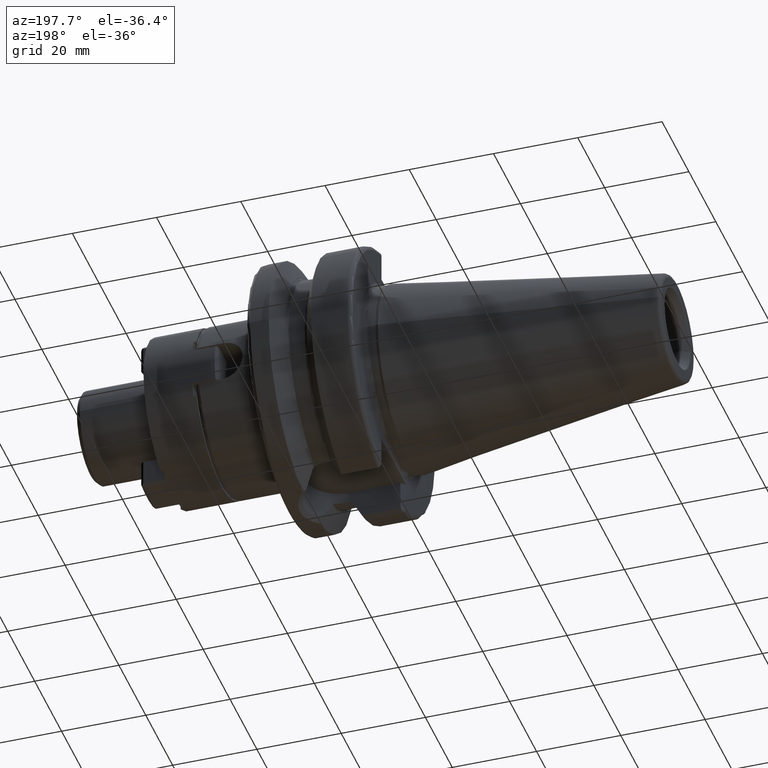
[diagram: clean part render]
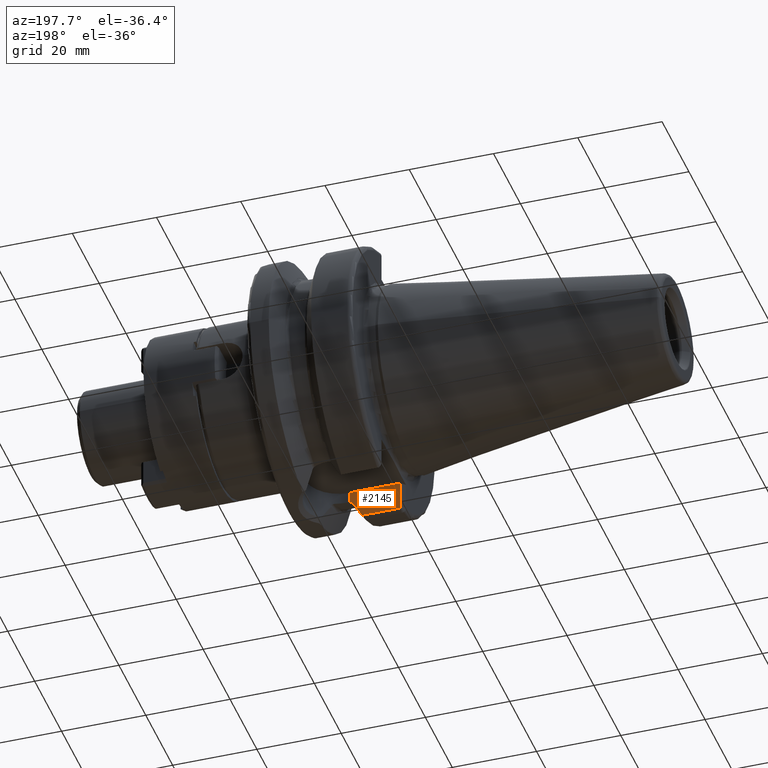
[diagram: same view with one face highlighted and labeled with its STEP entity id]
A machine part, auxiliary view. The second image highlights one B-rep face of the part: STEP entity #2145.
In plain terms, the highlighted planar face has unit normal (0, -1, 0).
Its self-contained STEP definition (entity closure, byte-faithful):
#293=DIRECTION('',(6.771558882017E-14,-6.771558882017E-14,-1.E0));
#294=VECTOR('',#293,5.246522611263E-2);
#295=CARTESIAN_POINT('',(1.40625E1,-8.095E0,-2.588892813540E1));
#296=LINE('',#295,#294);
#297=CARTESIAN_POINT('',(1.48125E1,-8.095E0,-2.510202382279E1));
#298=CARTESIAN_POINT('',(1.474626583175E1,-8.095E0,-2.510202382279E1));
#299=CARTESIAN_POINT('',(1.462196122728E1,-8.095E0,-2.512019824361E1));
#300=CARTESIAN_POINT('',(1.446015344720E1,-8.095E0,-2.518681119149E1));
#301=CARTESIAN_POINT('',(1.432194250541E1,-8.095E0,-2.528577048685E1));
#302=CARTESIAN_POINT('',(1.421112933741E1,-8.095E0,-2.540882158997E1));
#303=CARTESIAN_POINT('',(1.412599264270E1,-8.095E0,-2.555700431287E1));
#304=CARTESIAN_POINT('',(1.407429746920E1,-8.095E0,-2.571931087657E1));
#305=CARTESIAN_POINT('',(1.40625E1,-8.095E0,-2.583143069402E1));
#306=CARTESIAN_POINT('',(1.40625E1,-8.095E0,-2.588892813540E1));
#308=DIRECTION('',(1.E0,0.E0,0.E0));
#309=VECTOR('',#308,3.425E-1);
#310=CARTESIAN_POINT('',(1.48125E1,-8.095E0,-2.510202382279E1));
#311=LINE('',#310,#309);
#312=DIRECTION('',(-2.257498889307E-6,2.251545840954E-6,-9.999999999949E-1));
#313=VECTOR('',#312,6.649196006545E0);
#314=CARTESIAN_POINT('',(3.E0,-8.095E0,-2.245E1));
#315=LINE('',#314,#313);
#316=CARTESIAN_POINT('',(2.999984989447E0,-8.094985029030E0,-2.909919600651E1));
#317=CARTESIAN_POINT('',(2.978199953432E0,-8.094985029030E0,-2.910621005326E1));
#318=CARTESIAN_POINT('',(2.939061403220E0,-8.095006941660E0,-2.912732028587E1));
#319=CARTESIAN_POINT('',(2.888635871055E0,-8.094998160646E0,-2.918633978618E1));
#320=CARTESIAN_POINT('',(2.863816327920E0,-8.095000415757E0,-2.926079737323E1));
#321=CARTESIAN_POINT('',(2.867841466574E0,-8.095000176327E0,-2.933639768654E1));
#322=CARTESIAN_POINT('',(2.898195259320E0,-8.094998878937E0,-2.939867688526E1));
#323=CARTESIAN_POINT('',(2.947058825082E0,-8.095004307925E0,-2.943767118104E1));
#324=CARTESIAN_POINT('',(2.981463392569E0,-8.094990695550E0,-2.944551523315E1));
#325=CARTESIAN_POINT('',(2.999999944646E0,-8.094990695550E0,-2.944559726605E1));
#327=DIRECTION('',(9.999999999985E-1,-1.020124403797E-6,1.371373608656E-6));
#328=VECTOR('',#327,9.120897357077E0);
#329=CARTESIAN_POINT('',(2.999999944646E0,-8.094990695550E0,-2.944559726605E1));
#330=LINE('',#329,#328);
#331=CARTESIAN_POINT('',(1.40625E1,-8.095E0,-2.594139336151E1));
#332=CARTESIAN_POINT('',(1.385657504808E1,-8.095E0,-2.631502798627E1));
#333=CARTESIAN_POINT('',(1.343816757814E1,-8.095E0,-2.707276272189E1));
#334=CARTESIAN_POINT('',(1.279109429984E1,-8.095E0,-2.824052697941E1));
#335=CARTESIAN_POINT('',(1.234647911565E1,-8.095E0,-2.904036968182E1));
#336=CARTESIAN_POINT('',(1.212089730171E1,-8.095E0,-2.944558475789E1));
#436=DIRECTION('',(0.E0,0.E0,-1.E0));
#437=VECTOR('',#436,2.652023822792E0);
#438=CARTESIAN_POINT('',(1.5155E1,-8.095E0,-2.245E1));
#439=LINE('',#438,#437);
#754=DIRECTION('',(1.E0,0.E0,0.E0));
#755=VECTOR('',#754,1.2155E1);
#756=CARTESIAN_POINT('',(3.E0,-8.095E0,-2.245E1));
#757=LINE('',#756,#755);
#1462=CARTESIAN_POINT('',(1.40625E1,-8.095E0,-2.588892813540E1));
#1464=VERTEX_POINT('',#1462);
#1470=CARTESIAN_POINT('',(1.48125E1,-8.095E0,-2.510202382279E1));
#1472=VERTEX_POINT('',#1470);
#1507=CARTESIAN_POINT('',(1.40625E1,-8.095E0,-2.594139336151E1));
#1509=VERTEX_POINT('',#1507);
#1600=CARTESIAN_POINT('',(1.5155E1,-8.095E0,-2.245E1));
#1602=VERTEX_POINT('',#1600);
#1619=CARTESIAN_POINT('',(1.5155E1,-8.095E0,-2.510202382279E1));
#1620=VERTEX_POINT('',#1619);
#1621=VERTEX_POINT('',#336);
#1665=CARTESIAN_POINT('',(3.E0,-8.095E0,-2.245E1));
#1666=CARTESIAN_POINT('',(2.999984989447E0,-8.094985029030E0,
-2.909919600651E1));
#1667=VERTEX_POINT('',#1665);
#1668=VERTEX_POINT('',#1666);
#1671=CARTESIAN_POINT('',(2.999999944646E0,-8.094990695550E0,
-2.944559726605E1));
#1672=VERTEX_POINT('',#1671);
#2123=CARTESIAN_POINT('',(1.5E0,-8.095E0,-2.245E1));
#2124=DIRECTION('',(0.E0,-1.E0,0.E0));
#2125=DIRECTION('',(1.E0,0.E0,0.E0));
#2126=AXIS2_PLACEMENT_3D('',#2123,#2124,#2125);
#2127=PLANE('',#2126);
#2128=ORIENTED_EDGE('',*,*,#2017,.F.);
#2130=ORIENTED_EDGE('',*,*,#2129,.F.);
#2132=ORIENTED_EDGE('',*,*,#2131,.T.);
#2134=ORIENTED_EDGE('',*,*,#2133,.F.);
#2136=ORIENTED_EDGE('',*,*,#2135,.F.);
#2138=ORIENTED_EDGE('',*,*,#2137,.T.);
#2140=ORIENTED_EDGE('',*,*,#2139,.T.);
#2141=ORIENTED_EDGE('',*,*,#2115,.T.);
#2142=ORIENTED_EDGE('',*,*,#2046,.F.);
#2143=EDGE_LOOP('',(#2128,#2130,#2132,#2134,#2136,#2138,#2140,#2141,#2142));
#2144=FACE_OUTER_BOUND('',#2143,.F.);
#2145=ADVANCED_FACE('',(#2144),#2127,.F.);
#307=B_SPLINE_CURVE_WITH_KNOTS('',3,(#297,#298,#299,#300,#301,#302,#303,#304,
#305,#306),.UNSPECIFIED.,.F.,.F.,(4,1,1,1,1,1,1,4),(0.E0,1.428571428571E-1,
2.857142857143E-1,4.285714285714E-1,5.714285714286E-1,7.142857142857E-1,
8.571428571429E-1,1.E0),.UNSPECIFIED.);
#326=B_SPLINE_CURVE_WITH_KNOTS('',3,(#316,#317,#318,#319,#320,#321,#322,#323,
#324,#325),.UNSPECIFIED.,.F.,.F.,(4,1,1,1,1,1,1,4),(0.E0,1.428571428571E-1,
2.857142857143E-1,4.285714285714E-1,5.714285714286E-1,7.142857142857E-1,
8.571428571429E-1,1.E0),.UNSPECIFIED.);
#337=B_SPLINE_CURVE_WITH_KNOTS('',3,(#331,#332,#333,#334,#335,#336),
.UNSPECIFIED.,.F.,.F.,(4,1,1,4),(0.E0,3.333333333333E-1,6.666666666667E-1,1.E0),
.UNSPECIFIED.);
#2017=EDGE_CURVE('',#1464,#1509,#296,.T.);
#2046=EDGE_CURVE('',#1509,#1621,#337,.T.);
#2115=EDGE_CURVE('',#1672,#1621,#330,.T.);
#2129=EDGE_CURVE('',#1472,#1464,#307,.T.);
#2131=EDGE_CURVE('',#1472,#1620,#311,.T.);
#2133=EDGE_CURVE('',#1602,#1620,#439,.T.);
#2135=EDGE_CURVE('',#1667,#1602,#757,.T.);
#2137=EDGE_CURVE('',#1667,#1668,#315,.T.);
#2139=EDGE_CURVE('',#1668,#1672,#326,.T.);